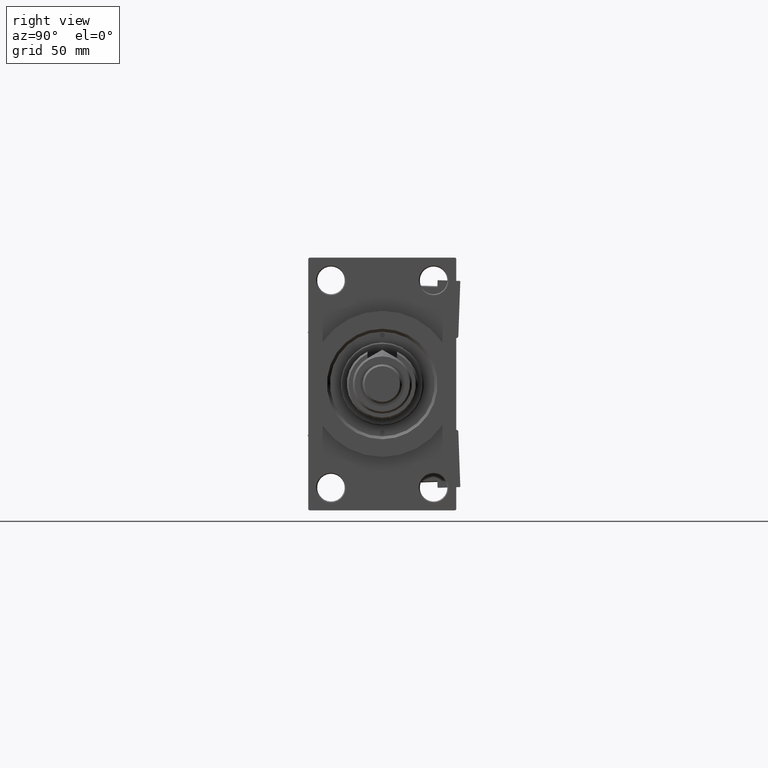
[diagram: clean part render]
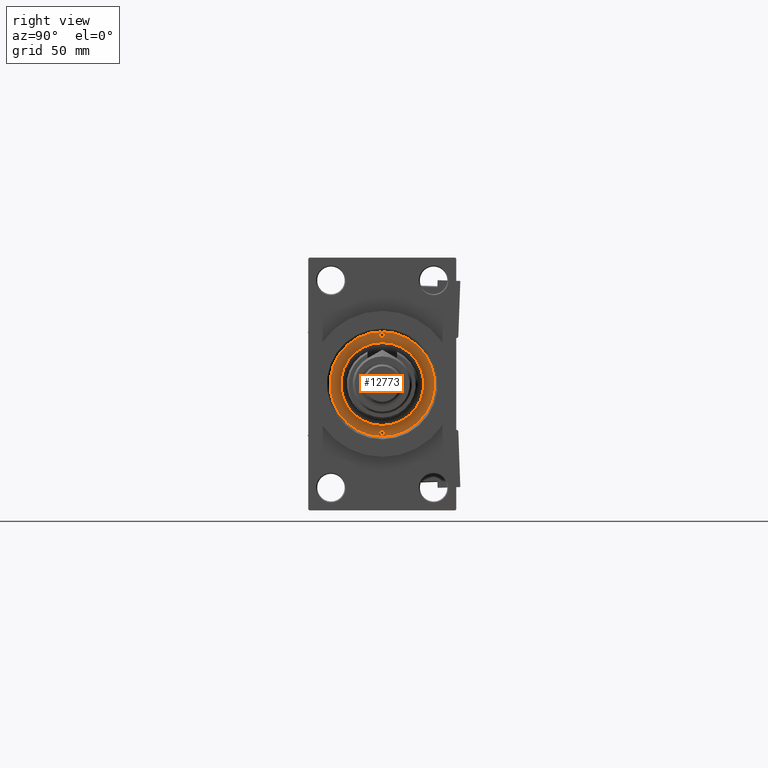
[diagram: same view with one face highlighted and labeled with its STEP entity id]
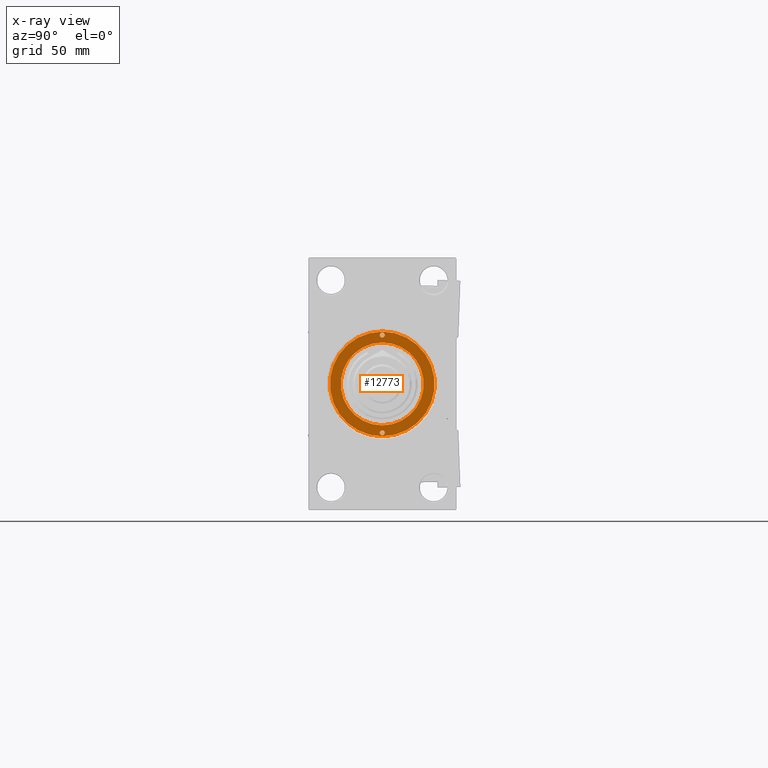
[diagram: x-ray of the same camera — body ghosted, the highlighted face saturated]
A machine part, right view. The second image highlights one B-rep face of the part: STEP entity #12773.
The next image is the same camera in x-ray: the body ghosted, the highlighted face saturated — about 0% of this face is hidden behind the body in this view.
In plain terms, the highlighted planar face has unit normal (1, -0, -0).
Its self-contained STEP definition (entity closure, byte-faithful):
#65 = DIRECTION ( 'NONE',  ( -0.000000000000000000, -0.000000000000000000, 1.000000000000000000 ) ) ;
#659 = DIRECTION ( 'NONE',  ( 1.000000000000000000, 0.000000000000000000, 0.000000000000000000 ) ) ;
#1161 = DIRECTION ( 'NONE',  ( -0.000000000000000000, -0.000000000000000000, 1.000000000000000000 ) ) ;
#1364 = VERTEX_POINT ( 'NONE', #39119 ) ;
#1377 = ORIENTED_EDGE ( 'NONE', *, *, #44755, .T. ) ;
#2531 = AXIS2_PLACEMENT_3D ( 'NONE', #25839, #29825, #9394 ) ;
#3154 = DIRECTION ( 'NONE',  ( 0.000000000000000000, 0.000000000000000000, 1.000000000000000000 ) ) ;
#3347 = VERTEX_POINT ( 'NONE', #33583 ) ;
#3628 = DIRECTION ( 'NONE',  ( 1.000000000000000000, 0.000000000000000000, 0.000000000000000000 ) ) ;
#3941 = DIRECTION ( 'NONE',  ( -0.000000000000000000, -0.000000000000000000, 1.000000000000000000 ) ) ;
#7656 = CARTESIAN_POINT ( 'NONE',  ( 0.000000000000000000, 0.000000000000000000, 43.25999999999999801 ) ) ;
#7911 = CARTESIAN_POINT ( 'NONE',  ( 21.00000000000000000, 2.571758278209441661E-15, 43.25999999999999801 ) ) ;
#8221 = AXIS2_PLACEMENT_3D ( 'NONE', #32690, #24739, #48847 ) ;
#8554 = CIRCLE ( 'NONE', #33107, 21.00000000000000000 ) ;
#8698 = CIRCLE ( 'NONE', #50187, 1.249999999999997558 ) ;
#9288 = AXIS2_PLACEMENT_3D ( 'NONE', #40823, #3941, #16416 ) ;
#9394 = DIRECTION ( 'NONE',  ( 1.000000000000000000, 0.000000000000000000, -0.000000000000000000 ) ) ;
#9398 = VERTEX_POINT ( 'NONE', #10174 ) ;
#9921 = FACE_BOUND ( 'NONE', #11482, .T. ) ;
#10174 = CARTESIAN_POINT ( 'NONE',  ( 23.50000000000000355, 1.530808498934188612E-16, 43.25999999999999801 ) ) ;
#11482 = EDGE_LOOP ( 'NONE', ( #49971, #34424 ) ) ;
#12216 = AXIS2_PLACEMENT_3D ( 'NONE', #18391, #34843, #19443 ) ;
#12773 = ADVANCED_FACE ( 'NONE', ( #41748, #21352, #9921, #13905 ), #34077, .T. ) ;
#13905 = FACE_OUTER_BOUND ( 'NONE', #28164, .T. ) ;
#15069 = CARTESIAN_POINT ( 'NONE',  ( 0.000000000000000000, 0.000000000000000000, 43.25999999999999801 ) ) ;
#16416 = DIRECTION ( 'NONE',  ( 1.000000000000000000, 0.000000000000000000, 0.000000000000000000 ) ) ;
#17073 = EDGE_LOOP ( 'NONE', ( #46614, #40740 ) ) ;
#17368 = EDGE_CURVE ( 'NONE', #28723, #45935, #8554, .T. ) ;
#17645 = EDGE_CURVE ( 'NONE', #1364, #43338, #47503, .T. ) ;
#18226 = DIRECTION ( 'NONE',  ( 1.000000000000000000, 0.000000000000000000, 0.000000000000000000 ) ) ;
#18391 = CARTESIAN_POINT ( 'NONE',  ( 0.000000000000000000, 0.000000000000000000, 43.25999999999999801 ) ) ;
#19067 = AXIS2_PLACEMENT_3D ( 'NONE', #7656, #3154, #36043 ) ;
#19160 = CIRCLE ( 'NONE', #22533, 26.50000000000000355 ) ;
#19443 = DIRECTION ( 'NONE',  ( 1.000000000000000000, 0.000000000000000000, 0.000000000000000000 ) ) ;
#19693 = EDGE_CURVE ( 'NONE', #43338, #1364, #8698, .T. ) ;
#21352 = FACE_BOUND ( 'NONE', #17073, .T. ) ;
#21453 = VERTEX_POINT ( 'NONE', #48563 ) ;
#22155 = EDGE_CURVE ( 'NONE', #45935, #28723, #25777, .T. ) ;
#22533 = AXIS2_PLACEMENT_3D ( 'NONE', #15069, #48188, #3628 ) ;
#24739 = DIRECTION ( 'NONE',  ( -0.000000000000000000, -0.000000000000000000, 1.000000000000000000 ) ) ;
#25777 = CIRCLE ( 'NONE', #12216, 21.00000000000000000 ) ;
#25839 = CARTESIAN_POINT ( 'NONE',  ( 0.000000000000000000, 0.000000000000000000, 43.25999999999999801 ) ) ;
#26163 = EDGE_CURVE ( 'NONE', #21453, #34048, #19160, .T. ) ;
#27381 = ORIENTED_EDGE ( 'NONE', *, *, #17645, .F. ) ;
#27743 = ORIENTED_EDGE ( 'NONE', *, *, #26163, .T. ) ;
#28164 = EDGE_LOOP ( 'NONE', ( #27743, #1377 ) ) ;
#28723 = VERTEX_POINT ( 'NONE', #48938 ) ;
#29825 = DIRECTION ( 'NONE',  ( 0.000000000000000000, 0.000000000000000000, 1.000000000000000000 ) ) ;
#30441 = CARTESIAN_POINT ( 'NONE',  ( 0.000000000000000000, 0.000000000000000000, 43.25999999999999801 ) ) ;
#32149 = EDGE_CURVE ( 'NONE', #3347, #9398, #51422, .T. ) ;
#32587 = CIRCLE ( 'NONE', #19067, 26.50000000000000355 ) ;
#32690 = CARTESIAN_POINT ( 'NONE',  ( 24.75000000000000000, 0.000000000000000000, 43.25999999999999801 ) ) ;
#33107 = AXIS2_PLACEMENT_3D ( 'NONE', #30441, #50836, #18226 ) ;
#33583 = CARTESIAN_POINT ( 'NONE',  ( 26.00000000000000000, 0.000000000000000000, 43.25999999999999801 ) ) ;
#34048 = VERTEX_POINT ( 'NONE', #51548 ) ;
#34077 = PLANE ( 'NONE',  #2531 ) ;
#34424 = ORIENTED_EDGE ( 'NONE', *, *, #22155, .F. ) ;
#34843 = DIRECTION ( 'NONE',  ( 0.000000000000000000, 0.000000000000000000, 1.000000000000000000 ) ) ;
#35682 = AXIS2_PLACEMENT_3D ( 'NONE', #46003, #1161, #659 ) ;
#36043 = DIRECTION ( 'NONE',  ( 1.000000000000000000, 0.000000000000000000, 0.000000000000000000 ) ) ;
#37271 = EDGE_CURVE ( 'NONE', #9398, #3347, #44875, .T. ) ;
#39119 = CARTESIAN_POINT ( 'NONE',  ( -23.50000000000000355, 0.000000000000000000, 43.25999999999999801 ) ) ;
#40400 = CARTESIAN_POINT ( 'NONE',  ( -24.75000000000000000, 0.000000000000000000, 43.25999999999999801 ) ) ;
#40740 = ORIENTED_EDGE ( 'NONE', *, *, #37271, .F. ) ;
#40823 = CARTESIAN_POINT ( 'NONE',  ( 24.75000000000000000, 0.000000000000000000, 43.25999999999999801 ) ) ;
#41748 = FACE_BOUND ( 'NONE', #45175, .T. ) ;
#43338 = VERTEX_POINT ( 'NONE', #50132 ) ;
#44357 = DIRECTION ( 'NONE',  ( 1.000000000000000000, 0.000000000000000000, 0.000000000000000000 ) ) ;
#44755 = EDGE_CURVE ( 'NONE', #34048, #21453, #32587, .T. ) ;
#44875 = CIRCLE ( 'NONE', #9288, 1.249999999999997558 ) ;
#45175 = EDGE_LOOP ( 'NONE', ( #27381, #48076 ) ) ;
#45935 = VERTEX_POINT ( 'NONE', #7911 ) ;
#46003 = CARTESIAN_POINT ( 'NONE',  ( -24.75000000000000000, 0.000000000000000000, 43.25999999999999801 ) ) ;
#46614 = ORIENTED_EDGE ( 'NONE', *, *, #32149, .F. ) ;
#47503 = CIRCLE ( 'NONE', #35682, 1.249999999999997558 ) ;
#48076 = ORIENTED_EDGE ( 'NONE', *, *, #19693, .F. ) ;
#48188 = DIRECTION ( 'NONE',  ( 0.000000000000000000, 0.000000000000000000, 1.000000000000000000 ) ) ;
#48563 = CARTESIAN_POINT ( 'NONE',  ( -26.50000000000000355, 0.000000000000000000, 43.25999999999999801 ) ) ;
#48847 = DIRECTION ( 'NONE',  ( 1.000000000000000000, 0.000000000000000000, 0.000000000000000000 ) ) ;
#48938 = CARTESIAN_POINT ( 'NONE',  ( -21.00000000000000000, 0.000000000000000000, 43.25999999999999801 ) ) ;
#49971 = ORIENTED_EDGE ( 'NONE', *, *, #17368, .F. ) ;
#50132 = CARTESIAN_POINT ( 'NONE',  ( -26.00000000000000000, 1.530808498934188612E-16, 43.25999999999999801 ) ) ;
#50187 = AXIS2_PLACEMENT_3D ( 'NONE', #40400, #65, #44357 ) ;
#50836 = DIRECTION ( 'NONE',  ( 0.000000000000000000, 0.000000000000000000, 1.000000000000000000 ) ) ;
#51422 = CIRCLE ( 'NONE', #8221, 1.249999999999997558 ) ;
#51548 = CARTESIAN_POINT ( 'NONE',  ( 26.50000000000000355, 3.245314017740486554E-15, 43.25999999999999801 ) ) ;